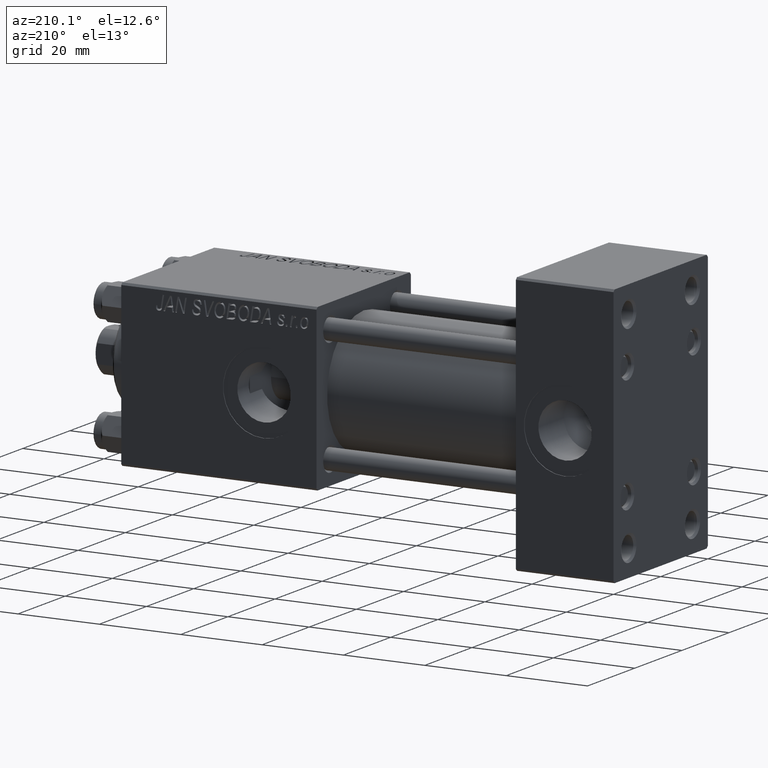
[diagram: clean part render]
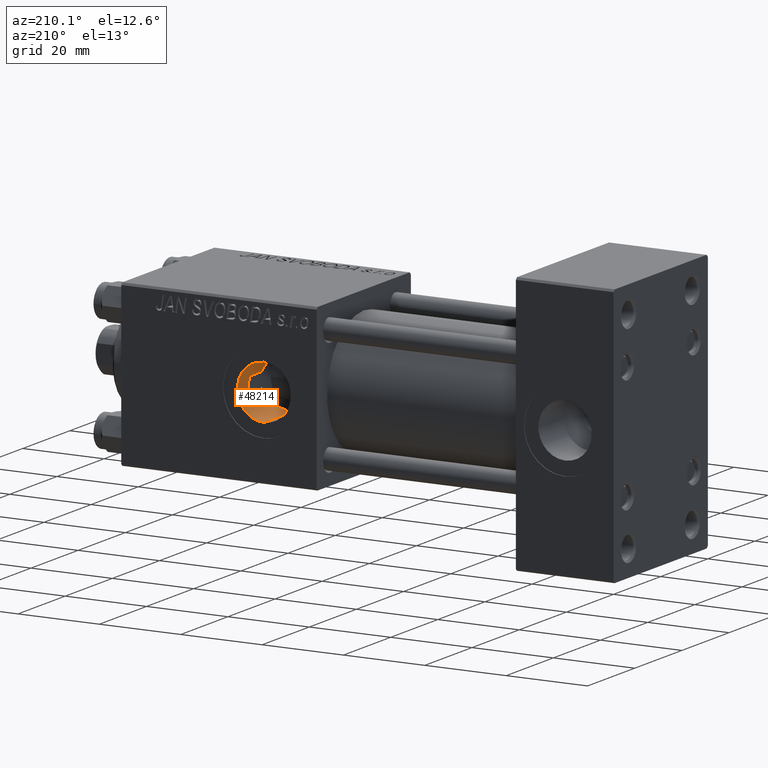
[diagram: same view with one face highlighted and labeled with its STEP entity id]
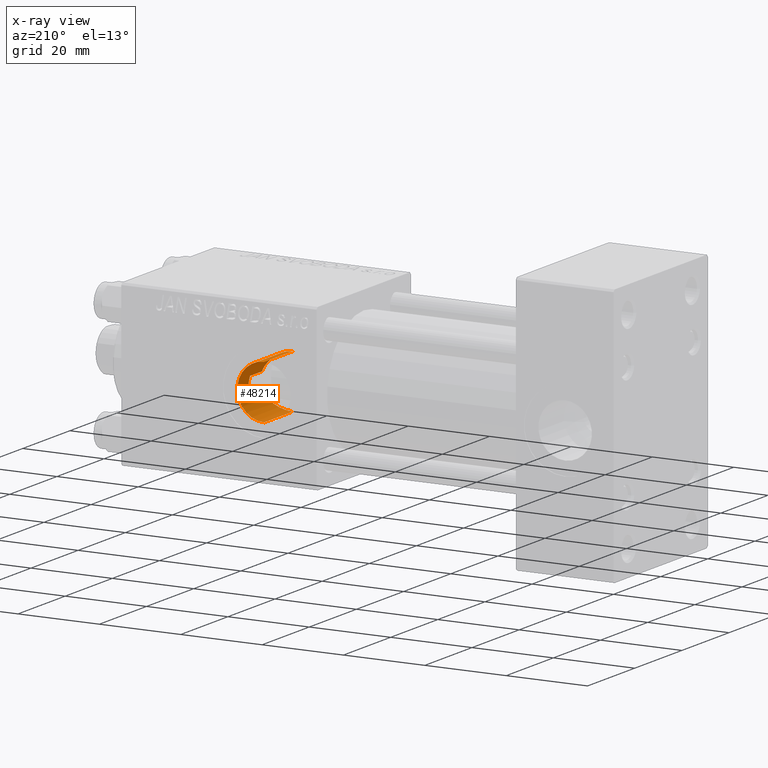
[diagram: x-ray of the same camera — body ghosted, the highlighted face saturated]
A machine part, auxiliary view. The second image highlights one B-rep face of the part: STEP entity #48214.
The next image is the same camera in x-ray: the body ghosted, the highlighted face saturated — about 0% of this face is hidden behind the body in this view.
In plain terms, the highlighted cylindrical surface (edge-blend (fillet) strip) has radius 6.58 mm, axis along (0, 1, 0).
Its self-contained STEP definition (entity closure, byte-faithful):
#1249 = CARTESIAN_POINT ( 'NONE',  ( 88.77794836456125438, 8.021215549762906960, 5.974964122704214731 ) ) ;
#1813 = CYLINDRICAL_SURFACE ( 'NONE', #22909, 6.580000000000002736 ) ;
#2397 = EDGE_CURVE ( 'NONE', #37001, #15094, #43366, .T. ) ;
#2929 = CARTESIAN_POINT ( 'NONE',  ( 92.48597345831302619, 14.95804352012491023, 1.282095859327452514 ) ) ;
#3390 = VERTEX_POINT ( 'NONE', #49619 ) ;
#3766 = CARTESIAN_POINT ( 'NONE',  ( 91.78105900131195938, 9.487771457740816317, -3.218818238633847084 ) ) ;
#4461 = VERTEX_POINT ( 'NONE', #30017 ) ;
#5047 = CARTESIAN_POINT ( 'NONE',  ( 88.45630154324121008, 7.914149538813081364, 6.114522335035941225 ) ) ;
#5299 = CARTESIAN_POINT ( 'NONE',  ( 91.75223238229615674, 9.475056611244905724, 3.214650014390036503 ) ) ;
#5549 = CARTESIAN_POINT ( 'NONE',  ( 92.19559940545097732, 9.751032784477276394, 2.245395522666036037 ) ) ;
#5797 = CARTESIAN_POINT ( 'NONE',  ( 90.48409306527264562, 8.761841459938953136, 4.827693198723235213 ) ) ;
#6737 = VECTOR ( 'NONE', #30305, 1000.000000000000000 ) ;
#6860 = LINE ( 'NONE', #17727, #31658 ) ;
#7311 = CARTESIAN_POINT ( 'NONE',  ( 92.30000000000001137, 9.818024241159722720, -1.899052395275083960 ) ) ;
#7389 = CARTESIAN_POINT ( 'NONE',  ( 92.30000000000001137, 9.818024241159722720, 1.899052395275083960 ) ) ;
#7611 = VERTEX_POINT ( 'NONE', #31601 ) ;
#8731 = ORIENTED_EDGE ( 'NONE', *, *, #40344, .T. ) ;
#9095 = CARTESIAN_POINT ( 'NONE',  ( 87.25920145535370409, 7.632701157856324414, 6.460912701972818972 ) ) ;
#9472 = CARTESIAN_POINT ( 'NONE',  ( 86.00000000000000000, 7.530179280734871305, -6.580000000000002736 ) ) ;
#10047 = VERTEX_POINT ( 'NONE', #40336 ) ;
#10527 = CARTESIAN_POINT ( 'NONE',  ( 92.39299503868927843, 14.91867580780344049, -1.590546560891553662 ) ) ;
#10735 = DIRECTION ( 'NONE',  ( 0.000000000000000000, 0.000000000000000000, 1.000000000000000000 ) ) ;
#10866 = CARTESIAN_POINT ( 'NONE',  ( 86.36941793954407842, 7.530179280734292213, -6.580000000000001847 ) ) ;
#11204 = EDGE_CURVE ( 'NONE', #37001, #43189, #42889, .T. ) ;
#13141 = CARTESIAN_POINT ( 'NONE',  ( 89.68052627453018033, 8.378042783064662657, 5.465019914473162821 ) ) ;
#13392 = CARTESIAN_POINT ( 'NONE',  ( 87.78520720135279021, 7.737027773371177197, 6.335744570728860658 ) ) ;
#14181 = B_SPLINE_CURVE_WITH_KNOTS ( 'NONE', 3,
 ( #7311, #22971, #3766, #33804, #18178, #25741, #18926, #41119, #49194, #21961, #14655, #22455, #30029, #45406, #10866, #26245 ),
 .UNSPECIFIED., .F., .F.,
 ( 4, 2, 2, 2, 2, 2, 2, 4 ),
 ( 0.000000000000000000, 0.002175432953934298454, 0.003263149430901447681, 0.004350865907868597775, 0.005438582384835748303, 0.006526298861802896228, 0.007614015338770045889, 0.008701731815737195549 ),
 .UNSPECIFIED. ) ;
#14655 = CARTESIAN_POINT ( 'NONE',  ( 88.46439935187881076, 7.916670686774623711, -6.111271469904056453 ) ) ;
#15094 = VERTEX_POINT ( 'NONE', #31617 ) ;
#15918 = CARTESIAN_POINT ( 'NONE',  ( 92.30000000000001137, -18.61105048082993463, 1.899052395275083960 ) ) ;
#16347 = B_SPLINE_CURVE_WITH_KNOTS ( 'NONE', 3,
 ( #28764, #20689, #42718, #9095, #24234, #13392, #39601, #5047, #1249, #32053, #13141, #28521, #5797, #24484, #39852, #16910, #5299, #24731, #5549, #20938 ),
 .UNSPECIFIED., .F., .F.,
 ( 4, 2, 2, 2, 2, 2, 2, 2, 2, 4 ),
 ( 0.02991628752357815627, 0.03099865436730146057, 0.03153983778916313180, 0.03208102121102480997, 0.03316338805474815243, 0.03424575489847150184, 0.03532812174219485124, 0.03641048858591819370, 0.03749285542964154311, 0.03857522227336489251 ),
 .UNSPECIFIED. ) ;
#16823 = DIRECTION ( 'NONE',  ( -0.000000000000000000, 1.000000000000000000, -0.000000000000000000 ) ) ;
#16910 = CARTESIAN_POINT ( 'NONE',  ( 91.57449249967352500, 9.367638872427022534, 3.512712749865884110 ) ) ;
#17222 = CARTESIAN_POINT ( 'NONE',  ( 86.00000000000000000, -18.61105048082993463, 0.000000000000000000 ) ) ;
#17320 = CARTESIAN_POINT ( 'NONE',  ( 92.30000000000001137, -18.61105048082993463, -1.899052395275083960 ) ) ;
#17727 = CARTESIAN_POINT ( 'NONE',  ( 86.00000000000000000, -18.61105048082993463, 6.580000000000002736 ) ) ;
#17843 = CARTESIAN_POINT ( 'NONE',  ( 92.55628534059988510, 14.98955309225333110, -0.6436176373405463336 ) ) ;
#18178 = CARTESIAN_POINT ( 'NONE',  ( 90.95930675802266308, 9.014312808260335430, -4.337968282305128653 ) ) ;
#18926 = CARTESIAN_POINT ( 'NONE',  ( 90.22894927749123895, 8.632985092358637758, -5.052777772504250642 ) ) ;
#20689 = CARTESIAN_POINT ( 'NONE',  ( 86.36475722309899083, 7.530179280734288660, 6.580000000000000959 ) ) ;
#20938 = CARTESIAN_POINT ( 'NONE',  ( 92.30000000000001137, 9.818024241159722720, 1.899052395275083960 ) ) ;
#21375 = CARTESIAN_POINT ( 'NONE',  ( 92.30000000000001137, 14.87930105885353527, -1.899052395275083960 ) ) ;
#21961 = CARTESIAN_POINT ( 'NONE',  ( 88.78169333126132301, 8.022630153773368633, -5.972987039475002646 ) ) ;
#22004 = ORIENTED_EDGE ( 'NONE', *, *, #35550, .F. ) ;
#22455 = CARTESIAN_POINT ( 'NONE',  ( 87.79671680564715075, 7.734895078602598062, -6.339772224986411686 ) ) ;
#22776 = ORIENTED_EDGE ( 'NONE', *, *, #35571, .F. ) ;
#22909 = AXIS2_PLACEMENT_3D ( 'NONE', #17222, #29325, #40909 ) ;
#22971 = CARTESIAN_POINT ( 'NONE',  ( 92.09078975544450429, 9.683778846330262979, -2.593095668635534867 ) ) ;
#23431 = ORIENTED_EDGE ( 'NONE', *, *, #34596, .T. ) ;
#24234 = CARTESIAN_POINT ( 'NONE',  ( 87.43711512804492259, 7.664198190640084007, 6.423653487387564809 ) ) ;
#24484 = CARTESIAN_POINT ( 'NONE',  ( 90.96109302577225719, 9.015276987505449924, 4.336042922833955870 ) ) ;
#24731 = CARTESIAN_POINT ( 'NONE',  ( 92.06440534221570715, 9.667757369786091459, 2.577816894246038437 ) ) ;
#24976 = CARTESIAN_POINT ( 'NONE',  ( 86.00000000000000000, -18.61105048082993463, -6.580000000000002736 ) ) ;
#25292 = FACE_OUTER_BOUND ( 'NONE', #49170, .T. ) ;
#25303 = DIRECTION ( 'NONE',  ( -0.000000000000000000, 1.000000000000000000, -0.000000000000000000 ) ) ;
#25415 = CARTESIAN_POINT ( 'NONE',  ( 92.57969369259541281, 14.99986563316393529, 0.6502615138572128695 ) ) ;
#25741 = CARTESIAN_POINT ( 'NONE',  ( 90.48430049440440825, 8.761966834513405189, -4.827394888999527289 ) ) ;
#26245 = CARTESIAN_POINT ( 'NONE',  ( 86.00000000000000000, 7.530179280734871305, -6.580000000000002736 ) ) ;
#26361 = CARTESIAN_POINT ( 'NONE',  ( 86.00000000000000000, 19.79999999999999716, 0.000000000000000000 ) ) ;
#27412 = CARTESIAN_POINT ( 'NONE',  ( 92.30000000000001137, 14.87930105885353527, 1.899052395275083960 ) ) ;
#28521 = CARTESIAN_POINT ( 'NONE',  ( 90.22580703294212867, 8.631498844176370255, 5.055222175476777657 ) ) ;
#28707 = CARTESIAN_POINT ( 'NONE',  ( 92.30000000000001137, 14.87930105885353527, 1.899052395275083960 ) ) ;
#28764 = CARTESIAN_POINT ( 'NONE',  ( 86.00000000000000000, 7.530179280734286884, 6.580000000000002736 ) ) ;
#29325 = DIRECTION ( 'NONE',  ( -0.000000000000000000, 1.000000000000000000, -0.000000000000000000 ) ) ;
#29490 = ORIENTED_EDGE ( 'NONE', *, *, #44616, .T. ) ;
#30017 = CARTESIAN_POINT ( 'NONE',  ( 92.30000000000001137, 9.818024241159722720, -1.899052395275083960 ) ) ;
#30029 = CARTESIAN_POINT ( 'NONE',  ( 87.44372686025251085, 7.659230998369539911, -6.429800219909260761 ) ) ;
#30148 = DIRECTION ( 'NONE',  ( 0.000000000000000000, 1.000000000000000000, 0.000000000000000000 ) ) ;
#30305 = DIRECTION ( 'NONE',  ( 0.000000000000000000, -1.000000000000000000, 0.000000000000000000 ) ) ;
#31601 = CARTESIAN_POINT ( 'NONE',  ( 86.00000000000000000, 19.79999999999999716, 6.580000000000002736 ) ) ;
#31617 = CARTESIAN_POINT ( 'NONE',  ( 92.30000000000001137, 14.87930105885353527, -1.899052395275083960 ) ) ;
#31658 = VECTOR ( 'NONE', #25303, 1000.000000000000000 ) ;
#31978 = ORIENTED_EDGE ( 'NONE', *, *, #39989, .F. ) ;
#32053 = CARTESIAN_POINT ( 'NONE',  ( 89.39192618494585929, 8.253972681303892500, 5.649073387702602922 ) ) ;
#33804 = CARTESIAN_POINT ( 'NONE',  ( 91.17962021284185425, 9.138132006252549289, -4.072983299526717005 ) ) ;
#34596 = EDGE_CURVE ( 'NONE', #7611, #10047, #43675, .T. ) ;
#35550 = EDGE_CURVE ( 'NONE', #38483, #10047, #47684, .T. ) ;
#35571 = EDGE_CURVE ( 'NONE', #3390, #43189, #16347, .T. ) ;
#35765 = VECTOR ( 'NONE', #16823, 1000.000000000000000 ) ;
#37001 = VERTEX_POINT ( 'NONE', #27412 ) ;
#38483 = VERTEX_POINT ( 'NONE', #9472 ) ;
#39088 = ORIENTED_EDGE ( 'NONE', *, *, #2397, .F. ) ;
#39601 = CARTESIAN_POINT ( 'NONE',  ( 87.95552312987379651, 7.778293972608184781, 6.285175371680118417 ) ) ;
#39852 = CARTESIAN_POINT ( 'NONE',  ( 91.17892971614782027, 9.137778965377110652, 4.073426627200729122 ) ) ;
#39989 = EDGE_CURVE ( 'NONE', #4461, #38483, #14181, .T. ) ;
#40336 = CARTESIAN_POINT ( 'NONE',  ( 86.00000000000000000, 19.79999999999999716, -6.580000000000002736 ) ) ;
#40344 = EDGE_CURVE ( 'NONE', #4461, #15094, #43808, .T. ) ;
#40909 = DIRECTION ( 'NONE',  ( 0.000000000000000000, 0.000000000000000000, 1.000000000000000000 ) ) ;
#41119 = CARTESIAN_POINT ( 'NONE',  ( 89.67940812881903412, 8.377497465932931320, -5.465942830974978683 ) ) ;
#42330 = ORIENTED_EDGE ( 'NONE', *, *, #11204, .T. ) ;
#42718 = CARTESIAN_POINT ( 'NONE',  ( 86.72505283040923985, 7.556788752293547518, 6.549887280238499088 ) ) ;
#42889 = LINE ( 'NONE', #15918, #6737 ) ;
#43189 = VERTEX_POINT ( 'NONE', #7389 ) ;
#43366 = B_SPLINE_CURVE_WITH_KNOTS ( 'NONE', 3,
 ( #28707, #2929, #25415, #45068, #17843, #44323, #10527, #21375 ),
 .UNSPECIFIED., .F., .F.,
 ( 4, 2, 2, 4 ),
 ( 0.000000000000000000, 0.001920194834847003878, 0.002880292252270505709, 0.003840389669694007756 ),
 .UNSPECIFIED. ) ;
#43675 = CIRCLE ( 'NONE', #46096, 6.580000000000002736 ) ;
#43808 = LINE ( 'NONE', #17320, #35765 ) ;
#44323 = CARTESIAN_POINT ( 'NONE',  ( 92.46269848422150517, 14.94885601429337640, -1.277751710036741262 ) ) ;
#44616 = EDGE_CURVE ( 'NONE', #3390, #7611, #6860, .T. ) ;
#45068 = CARTESIAN_POINT ( 'NONE',  ( 92.58015205342158538, 15.00006670076156112, -0.3204703341157322249 ) ) ;
#45299 = VECTOR ( 'NONE', #46510, 1000.000000000000000 ) ;
#45406 = CARTESIAN_POINT ( 'NONE',  ( 86.73177778529077386, 7.557444737900196330, -6.549135774124295928 ) ) ;
#46096 = AXIS2_PLACEMENT_3D ( 'NONE', #26361, #30148, #10735 ) ;
#46510 = DIRECTION ( 'NONE',  ( -0.000000000000000000, 1.000000000000000000, -0.000000000000000000 ) ) ;
#47684 = LINE ( 'NONE', #24976, #45299 ) ;
#48214 = ADVANCED_FACE ( 'NONE', ( #25292 ), #1813, .F. ) ;
#49170 = EDGE_LOOP ( 'NONE', ( #22004, #31978, #8731, #39088, #42330, #22776, #29490, #23431 ) ) ;
#49194 = CARTESIAN_POINT ( 'NONE',  ( 89.38850089072877836, 8.252679266851465911, -5.650880787669295025 ) ) ;
#49619 = CARTESIAN_POINT ( 'NONE',  ( 86.00000000000000000, 7.530179280734286884, 6.580000000000002736 ) ) ;